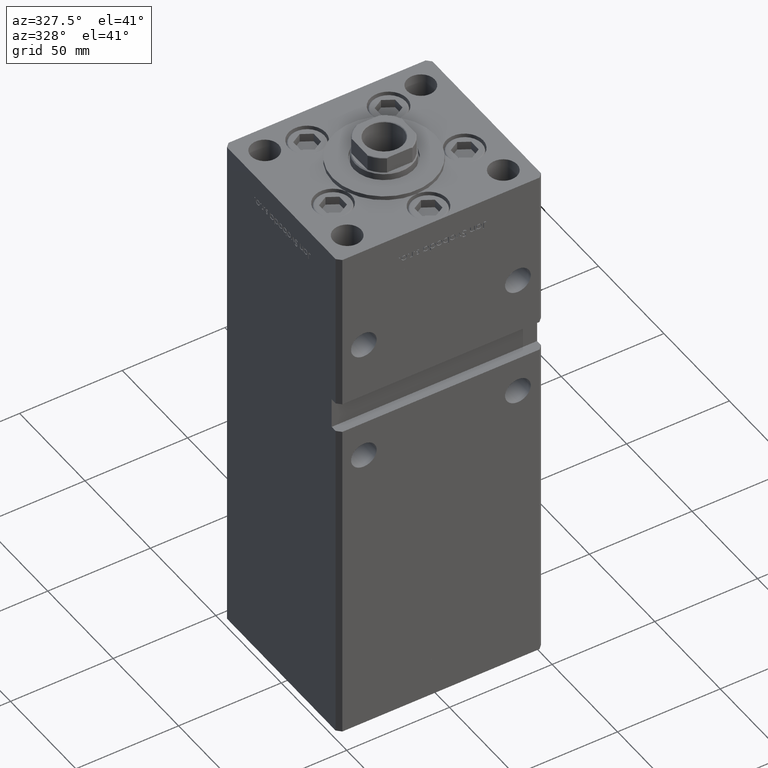
[diagram: clean part render]
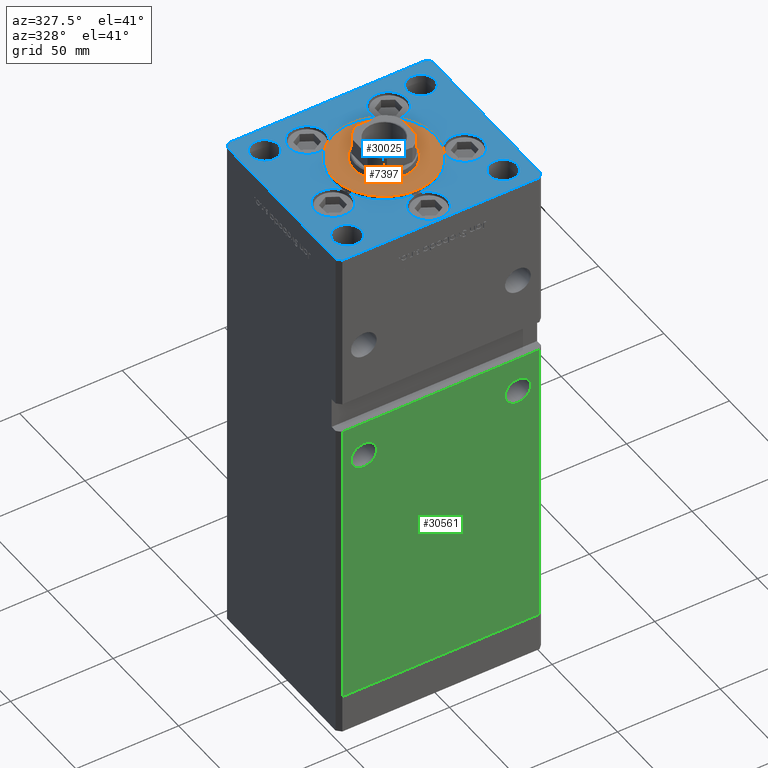
[diagram: same view with three faces highlighted in distinct colors, each labeled with its STEP entity id]
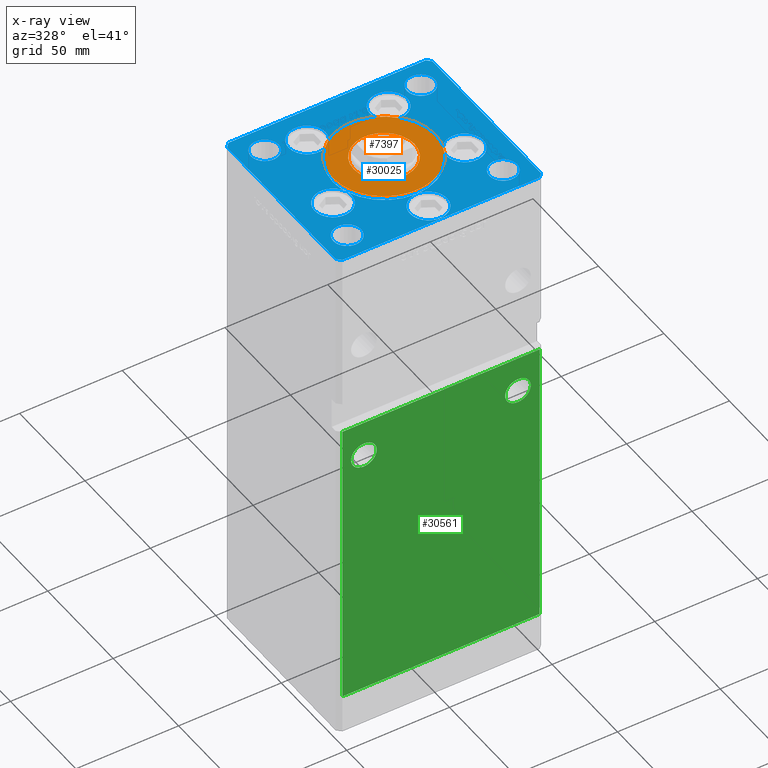
[diagram: x-ray of the same camera — body ghosted, the three highlighted faces saturated]
A machine part, auxiliary view with three faces highlighted in distinct colors.
The next image is the same camera in x-ray (body ghosted, the three faces saturated) — at least one of them is partly hidden behind the body in this view.
Their STEP definitions:

[orange] entity #7397 — the highlighted planar face has unit normal (0, 0, 1).
#1844 = CARTESIAN_POINT ( 'NONE',  ( 0.000000000000000000, -6.938893903907228378E-15, 2.000000000000000000 ) ) ;
#4925 = DIRECTION ( 'NONE',  ( 1.000000000000000000, 0.000000000000000000, -0.000000000000000000 ) ) ;
#5045 = DIRECTION ( 'NONE',  ( 1.000000000000000000, 0.000000000000000000, 0.000000000000000000 ) ) ;
#5736 = AXIS2_PLACEMENT_3D ( 'NONE', #30347, #26049, #5045 ) ;
#7397 = ADVANCED_FACE ( 'NONE', ( #16527, #41562 ), #33222, .T. ) ;
#7594 = CIRCLE ( 'NONE', #51451, 25.00000000000000000 ) ;
#13839 = AXIS2_PLACEMENT_3D ( 'NONE', #20273, #28071, #44247 ) ;
#14024 = ORIENTED_EDGE ( 'NONE', *, *, #35188, .F. ) ;
#15466 = CARTESIAN_POINT ( 'NONE',  ( 0.000000000000000000, -6.938893903907228378E-15, 2.000000000000000000 ) ) ;
#16270 = DIRECTION ( 'NONE',  ( 0.000000000000000000, 0.000000000000000000, 1.000000000000000000 ) ) ;
#16527 = FACE_BOUND ( 'NONE', #21030, .T. ) ;
#17327 = VERTEX_POINT ( 'NONE', #21140 ) ;
#17739 = DIRECTION ( 'NONE',  ( 1.000000000000000000, 0.000000000000000000, 0.000000000000000000 ) ) ;
#19020 = EDGE_CURVE ( 'NONE', #51255, #17327, #41886, .T. ) ;
#19529 = DIRECTION ( 'NONE',  ( 1.000000000000000000, 0.000000000000000000, 0.000000000000000000 ) ) ;
#19725 = CARTESIAN_POINT ( 'NONE',  ( -25.00000000000000000, -6.938893903907228378E-15, 2.000000000000000000 ) ) ;
#20273 = CARTESIAN_POINT ( 'NONE',  ( 0.000000000000000000, -6.938893903907228378E-15, 2.000000000000000000 ) ) ;
#21030 = EDGE_LOOP ( 'NONE', ( #14024, #27603 ) ) ;
#21140 = CARTESIAN_POINT ( 'NONE',  ( 25.00000000000000000, -3.877276906038844941E-15, 2.000000000000000000 ) ) ;
#21306 = CIRCLE ( 'NONE', #51411, 14.75000000000000178 ) ;
#22800 = EDGE_CURVE ( 'NONE', #17327, #51255, #7594, .T. ) ;
#23318 = CIRCLE ( 'NONE', #13839, 14.75000000000000178 ) ;
#25384 = VERTEX_POINT ( 'NONE', #26987 ) ;
#25934 = EDGE_CURVE ( 'NONE', #50110, #25384, #21306, .T. ) ;
#26049 = DIRECTION ( 'NONE',  ( 0.000000000000000000, 0.000000000000000000, 1.000000000000000000 ) ) ;
#26987 = CARTESIAN_POINT ( 'NONE',  ( 14.75000000000000178, -6.938893903907228378E-15, 2.000000000000000000 ) ) ;
#27603 = ORIENTED_EDGE ( 'NONE', *, *, #25934, .F. ) ;
#28071 = DIRECTION ( 'NONE',  ( 0.000000000000000000, 0.000000000000000000, 1.000000000000000000 ) ) ;
#28122 = ORIENTED_EDGE ( 'NONE', *, *, #22800, .T. ) ;
#30347 = CARTESIAN_POINT ( 'NONE',  ( 0.000000000000000000, -6.938893903907228378E-15, 2.000000000000000000 ) ) ;
#30929 = DIRECTION ( 'NONE',  ( 0.000000000000000000, 0.000000000000000000, 1.000000000000000000 ) ) ;
#31008 = EDGE_LOOP ( 'NONE', ( #39825, #28122 ) ) ;
#32957 = CARTESIAN_POINT ( 'NONE',  ( 0.000000000000000000, -6.938893903907228378E-15, 2.000000000000000000 ) ) ;
#33222 = PLANE ( 'NONE',  #51024 ) ;
#34542 = CARTESIAN_POINT ( 'NONE',  ( -14.75000000000000178, -5.132539875164881787E-15, 2.000000000000000000 ) ) ;
#35188 = EDGE_CURVE ( 'NONE', #25384, #50110, #23318, .T. ) ;
#39825 = ORIENTED_EDGE ( 'NONE', *, *, #19020, .T. ) ;
#41562 = FACE_OUTER_BOUND ( 'NONE', #31008, .T. ) ;
#41886 = CIRCLE ( 'NONE', #5736, 25.00000000000000000 ) ;
#44247 = DIRECTION ( 'NONE',  ( 1.000000000000000000, 0.000000000000000000, 0.000000000000000000 ) ) ;
#45609 = DIRECTION ( 'NONE',  ( 0.000000000000000000, 0.000000000000000000, 1.000000000000000000 ) ) ;
#50110 = VERTEX_POINT ( 'NONE', #34542 ) ;
#51024 = AXIS2_PLACEMENT_3D ( 'NONE', #32957, #45609, #4925 ) ;
#51255 = VERTEX_POINT ( 'NONE', #19725 ) ;
#51411 = AXIS2_PLACEMENT_3D ( 'NONE', #15466, #16270, #19529 ) ;
#51451 = AXIS2_PLACEMENT_3D ( 'NONE', #1844, #30929, #17739 ) ;

[blue] entity #30025 — the highlighted planar face has unit normal (0, 0, 1).
#385 = PLANE ( 'NONE',  #22303 ) ;
#386 = VECTOR ( 'NONE', #41576, 1000.000000000000000 ) ;
#445 = CARTESIAN_POINT ( 'NONE',  ( 38.00000000000000000, 31.50000000000000000, 0.000000000000000000 ) ) ;
#525 = DIRECTION ( 'NONE',  ( 1.000000000000000000, 0.000000000000000000, 0.000000000000000000 ) ) ;
#723 = DIRECTION ( 'NONE',  ( 1.000000000000000000, 0.000000000000000000, 0.000000000000000000 ) ) ;
#741 = AXIS2_PLACEMENT_3D ( 'NONE', #12400, #41217, #52815 ) ;
#745 = CARTESIAN_POINT ( 'NONE',  ( -48.00000000000000711, -43.50000000000002842, 0.000000000000000000 ) ) ;
#982 = CARTESIAN_POINT ( 'NONE',  ( -19.82068048781374969, 27.62499999999998934, 0.000000000000000000 ) ) ;
#1048 = DIRECTION ( 'NONE',  ( -1.000000000000000000, 0.000000000000000000, 0.000000000000000000 ) ) ;
#1085 = AXIS2_PLACEMENT_3D ( 'NONE', #31517, #10787, #35563 ) ;
#1244 = ORIENTED_EDGE ( 'NONE', *, *, #26894, .F. ) ;
#1307 = CARTESIAN_POINT ( 'NONE',  ( 19.82068048781374969, 27.62499999999998934, 0.000000000000000000 ) ) ;
#1521 = EDGE_CURVE ( 'NONE', #23140, #32369, #33551, .T. ) ;
#1721 = CARTESIAN_POINT ( 'NONE',  ( -10.82068048781375147, 27.62499999999998934, 0.000000000000000000 ) ) ;
#1748 = DIRECTION ( 'NONE',  ( 1.000000000000000000, 0.000000000000000000, 0.000000000000000000 ) ) ;
#1889 = CIRCLE ( 'NONE', #37148, 25.00000000000000000 ) ;
#1972 = CARTESIAN_POINT ( 'NONE',  ( -28.82068048781374969, 27.62499999999998934, 0.000000000000000000 ) ) ;
#2140 = CIRCLE ( 'NONE', #13319, 8.999999999999998224 ) ;
#2192 = VERTEX_POINT ( 'NONE', #34498 ) ;
#2255 = ORIENTED_EDGE ( 'NONE', *, *, #29759, .F. ) ;
#2289 = EDGE_CURVE ( 'NONE', #41773, #27877, #42365, .T. ) ;
#2462 = EDGE_LOOP ( 'NONE', ( #24437, #38668 ) ) ;
#2603 = EDGE_CURVE ( 'NONE', #31336, #34993, #42410, .T. ) ;
#2734 = CARTESIAN_POINT ( 'NONE',  ( 44.75000000000000711, -31.50000000000000711, 0.000000000000000000 ) ) ;
#2821 = CARTESIAN_POINT ( 'NONE',  ( -38.00000000000000711, -31.50000000000000711, 0.000000000000000000 ) ) ;
#2928 = VECTOR ( 'NONE', #20074, 1000.000000000000000 ) ;
#2936 = CARTESIAN_POINT ( 'NONE',  ( -48.00000000000000000, 43.49999999999997158, 0.000000000000000000 ) ) ;
#3039 = EDGE_CURVE ( 'NONE', #42451, #14654, #17484, .T. ) ;
#3259 = ORIENTED_EDGE ( 'NONE', *, *, #15744, .F. ) ;
#3457 = EDGE_CURVE ( 'NONE', #28441, #10040, #15763, .T. ) ;
#3681 = DIRECTION ( 'NONE',  ( 1.000000000000000000, 0.000000000000000000, 0.000000000000000000 ) ) ;
#3998 = EDGE_CURVE ( 'NONE', #45568, #44961, #14957, .T. ) ;
#4107 = ORIENTED_EDGE ( 'NONE', *, *, #29474, .F. ) ;
#4166 = LINE ( 'NONE', #12249, #2928 ) ;
#4270 = DIRECTION ( 'NONE',  ( 0.000000000000000000, 0.000000000000000000, 1.000000000000000000 ) ) ;
#4411 = ORIENTED_EDGE ( 'NONE', *, *, #14753, .F. ) ;
#4638 = CARTESIAN_POINT ( 'NONE',  ( 10.82068048781375147, 27.62499999999998934, 0.000000000000000000 ) ) ;
#4778 = DIRECTION ( 'NONE',  ( 0.000000000000000000, 0.000000000000000000, 1.000000000000000000 ) ) ;
#5352 = ORIENTED_EDGE ( 'NONE', *, *, #35789, .T. ) ;
#5401 = ORIENTED_EDGE ( 'NONE', *, *, #14153, .F. ) ;
#5428 = EDGE_CURVE ( 'NONE', #7619, #21578, #34760, .T. ) ;
#5446 = AXIS2_PLACEMENT_3D ( 'NONE', #37748, #30176, #15024 ) ;
#5488 = AXIS2_PLACEMENT_3D ( 'NONE', #41068, #33514, #21131 ) ;
#5753 = EDGE_LOOP ( 'NONE', ( #48846, #11104 ) ) ;
#5887 = DIRECTION ( 'NONE',  ( 1.000000000000000000, 0.000000000000000000, 0.000000000000000000 ) ) ;
#6051 = EDGE_CURVE ( 'NONE', #14714, #24112, #45942, .T. ) ;
#6067 = EDGE_CURVE ( 'NONE', #30899, #12243, #4166, .T. ) ;
#6636 = DIRECTION ( 'NONE',  ( 1.000000000000000000, 0.000000000000000000, 0.000000000000000000 ) ) ;
#7018 = ORIENTED_EDGE ( 'NONE', *, *, #10260, .F. ) ;
#7089 = DIRECTION ( 'NONE',  ( -1.000000000000000000, 0.000000000000000000, 0.000000000000000000 ) ) ;
#7334 = EDGE_CURVE ( 'NONE', #22779, #7619, #51867, .T. ) ;
#7346 = CARTESIAN_POINT ( 'NONE',  ( 0.000000000000000000, -34.00000000000000000, 0.000000000000000000 ) ) ;
#7619 = VERTEX_POINT ( 'NONE', #21034 ) ;
#7853 = VECTOR ( 'NONE', #29527, 1000.000000000000114 ) ;
#7900 = EDGE_CURVE ( 'NONE', #47216, #17555, #22691, .T. ) ;
#8018 = CARTESIAN_POINT ( 'NONE',  ( 50.00000000000000000, 41.50000000000000711, 0.000000000000000000 ) ) ;
#8117 = CARTESIAN_POINT ( 'NONE',  ( 32.05550741379015989, -11.33333333333332860, 0.000000000000000000 ) ) ;
#8203 = CIRCLE ( 'NONE', #13385, 9.000000000000001776 ) ;
#8450 = CARTESIAN_POINT ( 'NONE',  ( 0.000000000000000000, -34.00000000000000000, 0.000000000000000000 ) ) ;
#8460 = FACE_BOUND ( 'NONE', #13766, .T. ) ;
#8664 = EDGE_CURVE ( 'NONE', #32144, #52545, #28677, .T. ) ;
#8718 = LINE ( 'NONE', #36489, #386 ) ;
#8852 = EDGE_CURVE ( 'NONE', #34993, #42451, #15941, .T. ) ;
#9243 = CARTESIAN_POINT ( 'NONE',  ( 0.000000000000000000, 0.000000000000000000, 0.000000000000000000 ) ) ;
#9346 = CARTESIAN_POINT ( 'NONE',  ( 0.000000000000000000, -6.938893903907228378E-15, 0.000000000000000000 ) ) ;
#9697 = ORIENTED_EDGE ( 'NONE', *, *, #22600, .F. ) ;
#10040 = VERTEX_POINT ( 'NONE', #36731 ) ;
#10260 = EDGE_CURVE ( 'NONE', #21578, #22779, #28370, .T. ) ;
#10282 = DIRECTION ( 'NONE',  ( 0.000000000000000000, 0.000000000000000000, 1.000000000000000000 ) ) ;
#10424 = CARTESIAN_POINT ( 'NONE',  ( 50.00000000000000000, 41.50000000000000711, 0.000000000000000000 ) ) ;
#10460 = CARTESIAN_POINT ( 'NONE',  ( 38.00000000000000711, -31.50000000000000711, 0.000000000000000000 ) ) ;
#10714 = VECTOR ( 'NONE', #46348, 1000.000000000000000 ) ;
#10787 = DIRECTION ( 'NONE',  ( 0.000000000000000000, 0.000000000000000000, 1.000000000000000000 ) ) ;
#10972 = CIRCLE ( 'NONE', #52262, 6.749999999999999112 ) ;
#11104 = ORIENTED_EDGE ( 'NONE', *, *, #22742, .T. ) ;
#12087 = CIRCLE ( 'NONE', #15492, 9.000000000000000000 ) ;
#12243 = VERTEX_POINT ( 'NONE', #745 ) ;
#12249 = CARTESIAN_POINT ( 'NONE',  ( -50.00000000000000000, -41.50000000000004263, 0.000000000000000000 ) ) ;
#12400 = CARTESIAN_POINT ( 'NONE',  ( 32.05550741379015989, -11.33333333333332860, 0.000000000000000000 ) ) ;
#12455 = ORIENTED_EDGE ( 'NONE', *, *, #27581, .F. ) ;
#12776 = AXIS2_PLACEMENT_3D ( 'NONE', #9346, #4778, #17429 ) ;
#12858 = DIRECTION ( 'NONE',  ( 0.000000000000000000, 0.000000000000000000, 1.000000000000000000 ) ) ;
#12893 = CARTESIAN_POINT ( 'NONE',  ( 47.99999999999999289, 43.50000000000000000, 0.000000000000000000 ) ) ;
#13075 = CIRCLE ( 'NONE', #21689, 6.749999999999999112 ) ;
#13279 = FACE_BOUND ( 'NONE', #2462, .T. ) ;
#13319 = AXIS2_PLACEMENT_3D ( 'NONE', #1307, #25558, #25813 ) ;
#13385 = AXIS2_PLACEMENT_3D ( 'NONE', #53214, #20621, #36515 ) ;
#13553 = FACE_BOUND ( 'NONE', #14836, .T. ) ;
#13639 = ORIENTED_EDGE ( 'NONE', *, *, #2603, .F. ) ;
#13766 = EDGE_LOOP ( 'NONE', ( #43872, #2255 ) ) ;
#13792 = CARTESIAN_POINT ( 'NONE',  ( 0.000000000000000000, -6.938893903907228378E-15, 0.000000000000000000 ) ) ;
#14020 = AXIS2_PLACEMENT_3D ( 'NONE', #8450, #25922, #29182 ) ;
#14028 = AXIS2_PLACEMENT_3D ( 'NONE', #28668, #36768, #53196 ) ;
#14153 = EDGE_CURVE ( 'NONE', #24112, #7619, #50300, .T. ) ;
#14475 = AXIS2_PLACEMENT_3D ( 'NONE', #10460, #39006, #1048 ) ;
#14637 = DIRECTION ( 'NONE',  ( 0.000000000000000000, 0.000000000000000000, 1.000000000000000000 ) ) ;
#14654 = VERTEX_POINT ( 'NONE', #40553 ) ;
#14714 = VERTEX_POINT ( 'NONE', #19826 ) ;
#14753 = EDGE_CURVE ( 'NONE', #24011, #28441, #8203, .T. ) ;
#14836 = EDGE_LOOP ( 'NONE', ( #1244, #43128, #40284, #3259, #9697, #43309, #47584, #4411, #12455, #15239, #41414, #7018, #46149, #5401, #51476, #51465, #4107, #36499, #33503, #23046, #13639, #20408 ) ) ;
#14957 = CIRCLE ( 'NONE', #35572, 6.749999999999999112 ) ;
#15024 = DIRECTION ( 'NONE',  ( -1.000000000000000000, 0.000000000000000000, 0.000000000000000000 ) ) ;
#15239 = ORIENTED_EDGE ( 'NONE', *, *, #37730, .F. ) ;
#15492 = AXIS2_PLACEMENT_3D ( 'NONE', #35550, #16074, #3681 ) ;
#15548 = VERTEX_POINT ( 'NONE', #27177 ) ;
#15678 = EDGE_CURVE ( 'NONE', #51279, #21735, #19646, .T. ) ;
#15744 = EDGE_CURVE ( 'NONE', #38164, #47216, #38338, .T. ) ;
#15763 = CIRCLE ( 'NONE', #22652, 9.000000000000001776 ) ;
#15941 = CIRCLE ( 'NONE', #21971, 9.000000000000000000 ) ;
#16074 = DIRECTION ( 'NONE',  ( 0.000000000000000000, 0.000000000000000000, 1.000000000000000000 ) ) ;
#16222 = DIRECTION ( 'NONE',  ( 0.000000000000000000, 0.000000000000000000, 1.000000000000000000 ) ) ;
#16605 = DIRECTION ( 'NONE',  ( -1.000000000000000000, 0.000000000000000000, 0.000000000000000000 ) ) ;
#16869 = DIRECTION ( 'NONE',  ( 0.000000000000000000, 0.000000000000000000, 1.000000000000000000 ) ) ;
#16911 = CARTESIAN_POINT ( 'NONE',  ( -31.25000000000000711, -31.50000000000000711, 0.000000000000000000 ) ) ;
#16938 = LINE ( 'NONE', #12893, #27385 ) ;
#17068 = FACE_OUTER_BOUND ( 'NONE', #42635, .T. ) ;
#17079 = AXIS2_PLACEMENT_3D ( 'NONE', #13792, #29687, #50961 ) ;
#17268 = CARTESIAN_POINT ( 'NONE',  ( -50.00000000000000711, 41.49999999999999289, 0.000000000000000000 ) ) ;
#17429 = DIRECTION ( 'NONE',  ( 1.000000000000000000, 0.000000000000000000, 0.000000000000000000 ) ) ;
#17484 = CIRCLE ( 'NONE', #14028, 25.00000000000000000 ) ;
#17487 = EDGE_LOOP ( 'NONE', ( #42730, #28730 ) ) ;
#17555 = VERTEX_POINT ( 'NONE', #4638 ) ;
#17888 = CIRCLE ( 'NONE', #24779, 25.00000000000000000 ) ;
#18182 = CARTESIAN_POINT ( 'NONE',  ( 50.00000000000000000, -41.49999999999992895, 0.000000000000000000 ) ) ;
#18186 = DIRECTION ( 'NONE',  ( 0.000000000000000000, 0.000000000000000000, 1.000000000000000000 ) ) ;
#18741 = CIRCLE ( 'NONE', #34229, 9.000000000000001776 ) ;
#18785 = CIRCLE ( 'NONE', #30806, 25.00000000000000000 ) ;
#19458 = CARTESIAN_POINT ( 'NONE',  ( -48.00000000000000000, 43.49999999999997158, 0.000000000000000000 ) ) ;
#19646 = LINE ( 'NONE', #2936, #34930 ) ;
#19826 = CARTESIAN_POINT ( 'NONE',  ( -23.05550741379015633, -11.33333333333332860, 0.000000000000000000 ) ) ;
#19869 = EDGE_CURVE ( 'NONE', #52545, #32144, #36751, .T. ) ;
#20009 = CARTESIAN_POINT ( 'NONE',  ( 47.99999999999999289, 43.50000000000000000, 0.000000000000000000 ) ) ;
#20074 = DIRECTION ( 'NONE',  ( 0.7071067811865487940, -0.7071067811865463515, 0.000000000000000000 ) ) ;
#20408 = ORIENTED_EDGE ( 'NONE', *, *, #33491, .F. ) ;
#20519 = CIRCLE ( 'NONE', #17079, 25.00000000000000000 ) ;
#20524 = DIRECTION ( 'NONE',  ( 0.000000000000000000, 0.000000000000000000, 1.000000000000000000 ) ) ;
#20621 = DIRECTION ( 'NONE',  ( 0.000000000000000000, 0.000000000000000000, 1.000000000000000000 ) ) ;
#20740 = ORIENTED_EDGE ( 'NONE', *, *, #27353, .T. ) ;
#20913 = DIRECTION ( 'NONE',  ( 1.000000000000000000, 0.000000000000000000, 0.000000000000000000 ) ) ;
#21034 = CARTESIAN_POINT ( 'NONE',  ( 0.000000000000000000, -25.00000000000000000, 0.000000000000000000 ) ) ;
#21131 = DIRECTION ( 'NONE',  ( 1.000000000000000000, 0.000000000000000000, 0.000000000000000000 ) ) ;
#21431 = CIRCLE ( 'NONE', #52382, 9.000000000000001776 ) ;
#21578 = VERTEX_POINT ( 'NONE', #48063 ) ;
#21689 = AXIS2_PLACEMENT_3D ( 'NONE', #48112, #51617, #6636 ) ;
#21730 = CARTESIAN_POINT ( 'NONE',  ( 0.000000000000000000, -6.938893903907228378E-15, 0.000000000000000000 ) ) ;
#21735 = VERTEX_POINT ( 'NONE', #37519 ) ;
#21863 = ORIENTED_EDGE ( 'NONE', *, *, #6067, .T. ) ;
#21971 = AXIS2_PLACEMENT_3D ( 'NONE', #982, #41924, #24720 ) ;
#22303 = AXIS2_PLACEMENT_3D ( 'NONE', #9243, #25680, #29971 ) ;
#22479 = EDGE_CURVE ( 'NONE', #27527, #14714, #18741, .T. ) ;
#22553 = LINE ( 'NONE', #10424, #50424 ) ;
#22600 = EDGE_CURVE ( 'NONE', #15548, #38164, #18785, .T. ) ;
#22652 = AXIS2_PLACEMENT_3D ( 'NONE', #8117, #20524, #29127 ) ;
#22691 = CIRCLE ( 'NONE', #24392, 8.999999999999998224 ) ;
#22742 = EDGE_CURVE ( 'NONE', #44961, #45568, #43739, .T. ) ;
#22750 = CARTESIAN_POINT ( 'NONE',  ( -23.57022603955158502, -8.333333333333332149, 0.000000000000000000 ) ) ;
#22779 = VERTEX_POINT ( 'NONE', #26621 ) ;
#23018 = ORIENTED_EDGE ( 'NONE', *, *, #1521, .T. ) ;
#23046 = ORIENTED_EDGE ( 'NONE', *, *, #8852, .F. ) ;
#23140 = VERTEX_POINT ( 'NONE', #27091 ) ;
#23984 = CIRCLE ( 'NONE', #12776, 25.00000000000000000 ) ;
#24011 = VERTEX_POINT ( 'NONE', #49168 ) ;
#24026 = CIRCLE ( 'NONE', #32620, 6.749999999999999112 ) ;
#24112 = VERTEX_POINT ( 'NONE', #22750 ) ;
#24392 = AXIS2_PLACEMENT_3D ( 'NONE', #41181, #4270, #32567 ) ;
#24437 = ORIENTED_EDGE ( 'NONE', *, *, #8664, .T. ) ;
#24470 = AXIS2_PLACEMENT_3D ( 'NONE', #7346, #16222, #49612 ) ;
#24674 = DIRECTION ( 'NONE',  ( -0.7071067811865536790, -0.7071067811865414665, 0.000000000000000000 ) ) ;
#24720 = DIRECTION ( 'NONE',  ( 1.000000000000000000, 0.000000000000000000, 0.000000000000000000 ) ) ;
#24779 = AXIS2_PLACEMENT_3D ( 'NONE', #31576, #43970, #47209 ) ;
#24895 = CARTESIAN_POINT ( 'NONE',  ( 44.75000000000000000, 31.50000000000000000, 0.000000000000000000 ) ) ;
#24897 = FACE_BOUND ( 'NONE', #17487, .T. ) ;
#25558 = DIRECTION ( 'NONE',  ( 0.000000000000000000, 0.000000000000000000, 1.000000000000000000 ) ) ;
#25680 = DIRECTION ( 'NONE',  ( -0.000000000000000000, 0.000000000000000000, 1.000000000000000000 ) ) ;
#25682 = CARTESIAN_POINT ( 'NONE',  ( 28.82068048781374969, 27.62499999999998934, 0.000000000000000000 ) ) ;
#25805 = EDGE_CURVE ( 'NONE', #27877, #41773, #10972, .T. ) ;
#25813 = DIRECTION ( 'NONE',  ( 1.000000000000000000, 0.000000000000000000, 0.000000000000000000 ) ) ;
#25922 = DIRECTION ( 'NONE',  ( 0.000000000000000000, 0.000000000000000000, 1.000000000000000000 ) ) ;
#26132 = VERTEX_POINT ( 'NONE', #24895 ) ;
#26621 = CARTESIAN_POINT ( 'NONE',  ( 9.000000000000000000, -34.00000000000000000, 0.000000000000000000 ) ) ;
#26760 = DIRECTION ( 'NONE',  ( -0.000000000000000000, -0.000000000000000000, -1.000000000000000000 ) ) ;
#26849 = DIRECTION ( 'NONE',  ( -0.7071067811865512365, 0.7071067811865439090, 0.000000000000000000 ) ) ;
#26894 = EDGE_CURVE ( 'NONE', #38164, #42451, #17888, .T. ) ;
#27091 = CARTESIAN_POINT ( 'NONE',  ( 50.00000000000000000, -41.49999999999992895, 0.000000000000000000 ) ) ;
#27177 = CARTESIAN_POINT ( 'NONE',  ( 25.00000000000000000, -3.877276906038844941E-15, 0.000000000000000000 ) ) ;
#27353 = EDGE_CURVE ( 'NONE', #30742, #51279, #16938, .T. ) ;
#27385 = VECTOR ( 'NONE', #49537, 1000.000000000000000 ) ;
#27527 = VERTEX_POINT ( 'NONE', #49302 ) ;
#27581 = EDGE_CURVE ( 'NONE', #10040, #24011, #39464, .T. ) ;
#27590 = DIRECTION ( 'NONE',  ( 1.000000000000000000, 0.000000000000000000, 0.000000000000000000 ) ) ;
#27867 = EDGE_CURVE ( 'NONE', #10040, #15548, #23984, .T. ) ;
#27877 = VERTEX_POINT ( 'NONE', #16911 ) ;
#27938 = CARTESIAN_POINT ( 'NONE',  ( -19.82068048781374969, 27.62499999999998934, 0.000000000000000000 ) ) ;
#28049 = AXIS2_PLACEMENT_3D ( 'NONE', #38372, #41885, #1748 ) ;
#28082 = EDGE_CURVE ( 'NONE', #14654, #24112, #20519, .T. ) ;
#28370 = CIRCLE ( 'NONE', #30979, 9.000000000000000000 ) ;
#28441 = VERTEX_POINT ( 'NONE', #47127 ) ;
#28668 = CARTESIAN_POINT ( 'NONE',  ( 0.000000000000000000, -6.938893903907228378E-15, 0.000000000000000000 ) ) ;
#28677 = CIRCLE ( 'NONE', #5446, 6.749999999999999112 ) ;
#28730 = ORIENTED_EDGE ( 'NONE', *, *, #2289, .F. ) ;
#29086 = VERTEX_POINT ( 'NONE', #48070 ) ;
#29127 = DIRECTION ( 'NONE',  ( 1.000000000000000000, 0.000000000000000000, 0.000000000000000000 ) ) ;
#29182 = DIRECTION ( 'NONE',  ( 1.000000000000000000, 0.000000000000000000, 0.000000000000000000 ) ) ;
#29255 = DIRECTION ( 'NONE',  ( -0.000000000000000000, -0.000000000000000000, -1.000000000000000000 ) ) ;
#29281 = DIRECTION ( 'NONE',  ( 1.000000000000000000, 0.000000000000000000, 0.000000000000000000 ) ) ;
#29330 = CARTESIAN_POINT ( 'NONE',  ( 0.000000000000000000, -6.938893903907228378E-15, 0.000000000000000000 ) ) ;
#29384 = ORIENTED_EDGE ( 'NONE', *, *, #48328, .T. ) ;
#29474 = EDGE_CURVE ( 'NONE', #24112, #27527, #21431, .T. ) ;
#29527 = DIRECTION ( 'NONE',  ( 0.7071067811865474617, 0.7071067811865474617, 0.000000000000000000 ) ) ;
#29687 = DIRECTION ( 'NONE',  ( 0.000000000000000000, 0.000000000000000000, 1.000000000000000000 ) ) ;
#29759 = EDGE_CURVE ( 'NONE', #29086, #26132, #24026, .T. ) ;
#29971 = DIRECTION ( 'NONE',  ( 1.000000000000000000, 0.000000000000000000, 0.000000000000000000 ) ) ;
#30025 = ADVANCED_FACE ( 'NONE', ( #13553, #13279, #8460, #24897, #17068, #41312 ), #385, .T. ) ;
#30092 = DIRECTION ( 'NONE',  ( 0.000000000000000000, 0.000000000000000000, 1.000000000000000000 ) ) ;
#30176 = DIRECTION ( 'NONE',  ( -0.000000000000000000, -0.000000000000000000, -1.000000000000000000 ) ) ;
#30472 = CARTESIAN_POINT ( 'NONE',  ( -14.57402977045128978, 20.31249999999999289, 0.000000000000000000 ) ) ;
#30662 = DIRECTION ( 'NONE',  ( 0.000000000000000000, 0.000000000000000000, 1.000000000000000000 ) ) ;
#30742 = VERTEX_POINT ( 'NONE', #20009 ) ;
#30806 = AXIS2_PLACEMENT_3D ( 'NONE', #29330, #41200, #525 ) ;
#30899 = VERTEX_POINT ( 'NONE', #38266 ) ;
#30979 = AXIS2_PLACEMENT_3D ( 'NONE', #38822, #10282, #33989 ) ;
#31200 = CARTESIAN_POINT ( 'NONE',  ( -31.25000000000000000, 31.50000000000000000, 0.000000000000000000 ) ) ;
#31336 = VERTEX_POINT ( 'NONE', #1721 ) ;
#31341 = CARTESIAN_POINT ( 'NONE',  ( -38.00000000000000000, 31.50000000000000000, 0.000000000000000000 ) ) ;
#31517 = CARTESIAN_POINT ( 'NONE',  ( -38.00000000000000711, -31.50000000000000711, 0.000000000000000000 ) ) ;
#31576 = CARTESIAN_POINT ( 'NONE',  ( 0.000000000000000000, -6.938893903907228378E-15, 0.000000000000000000 ) ) ;
#32144 = VERTEX_POINT ( 'NONE', #31200 ) ;
#32369 = VERTEX_POINT ( 'NONE', #8018 ) ;
#32567 = DIRECTION ( 'NONE',  ( 1.000000000000000000, 0.000000000000000000, 0.000000000000000000 ) ) ;
#32620 = AXIS2_PLACEMENT_3D ( 'NONE', #445, #16869, #20913 ) ;
#32855 = CARTESIAN_POINT ( 'NONE',  ( -44.75000000000000711, -31.50000000000000711, 0.000000000000000000 ) ) ;
#33491 = EDGE_CURVE ( 'NONE', #42451, #31336, #12087, .T. ) ;
#33503 = ORIENTED_EDGE ( 'NONE', *, *, #3039, .F. ) ;
#33514 = DIRECTION ( 'NONE',  ( 0.000000000000000000, 0.000000000000000000, 1.000000000000000000 ) ) ;
#33551 = LINE ( 'NONE', #18182, #37511 ) ;
#33989 = DIRECTION ( 'NONE',  ( 1.000000000000000000, 0.000000000000000000, 0.000000000000000000 ) ) ;
#34229 = AXIS2_PLACEMENT_3D ( 'NONE', #39670, #14637, #40669 ) ;
#34498 = CARTESIAN_POINT ( 'NONE',  ( 48.00000000000000711, -43.49999999999992184, 0.000000000000000000 ) ) ;
#34760 = CIRCLE ( 'NONE', #24470, 9.000000000000000000 ) ;
#34930 = VECTOR ( 'NONE', #24674, 1000.000000000000000 ) ;
#34993 = VERTEX_POINT ( 'NONE', #1972 ) ;
#35550 = CARTESIAN_POINT ( 'NONE',  ( -19.82068048781374969, 27.62499999999998934, 0.000000000000000000 ) ) ;
#35563 = DIRECTION ( 'NONE',  ( 1.000000000000000000, 0.000000000000000000, 0.000000000000000000 ) ) ;
#35572 = AXIS2_PLACEMENT_3D ( 'NONE', #41126, #29255, #16605 ) ;
#35789 = EDGE_CURVE ( 'NONE', #2192, #23140, #41136, .T. ) ;
#36489 = CARTESIAN_POINT ( 'NONE',  ( -48.00000000000000711, -43.50000000000002842, 0.000000000000000000 ) ) ;
#36499 = ORIENTED_EDGE ( 'NONE', *, *, #28082, .F. ) ;
#36515 = DIRECTION ( 'NONE',  ( 1.000000000000000000, 0.000000000000000000, 0.000000000000000000 ) ) ;
#36731 = CARTESIAN_POINT ( 'NONE',  ( 23.57022603955158502, -8.333333333333332149, 0.000000000000000000 ) ) ;
#36751 = CIRCLE ( 'NONE', #47030, 6.749999999999999112 ) ;
#36768 = DIRECTION ( 'NONE',  ( 0.000000000000000000, 0.000000000000000000, 1.000000000000000000 ) ) ;
#37148 = AXIS2_PLACEMENT_3D ( 'NONE', #21730, #12858, #29281 ) ;
#37511 = VECTOR ( 'NONE', #45670, 1000.000000000000000 ) ;
#37519 = CARTESIAN_POINT ( 'NONE',  ( -50.00000000000000711, 41.49999999999999289, 0.000000000000000000 ) ) ;
#37730 = EDGE_CURVE ( 'NONE', #7619, #10040, #1889, .T. ) ;
#37748 = CARTESIAN_POINT ( 'NONE',  ( -38.00000000000000000, 31.50000000000000000, 0.000000000000000000 ) ) ;
#37785 = EDGE_CURVE ( 'NONE', #26132, #29086, #13075, .T. ) ;
#38164 = VERTEX_POINT ( 'NONE', #44810 ) ;
#38266 = CARTESIAN_POINT ( 'NONE',  ( -50.00000000000000000, -41.50000000000004263, 0.000000000000000000 ) ) ;
#38338 = CIRCLE ( 'NONE', #28049, 8.999999999999998224 ) ;
#38372 = CARTESIAN_POINT ( 'NONE',  ( 19.82068048781374969, 27.62499999999998934, 0.000000000000000000 ) ) ;
#38476 = CARTESIAN_POINT ( 'NONE',  ( 0.000000000000000000, -6.938893903907228378E-15, 0.000000000000000000 ) ) ;
#38668 = ORIENTED_EDGE ( 'NONE', *, *, #19869, .T. ) ;
#38716 = CARTESIAN_POINT ( 'NONE',  ( -32.05550741379015989, -11.33333333333332860, 0.000000000000000000 ) ) ;
#38822 = CARTESIAN_POINT ( 'NONE',  ( 0.000000000000000000, -34.00000000000000000, 0.000000000000000000 ) ) ;
#39006 = DIRECTION ( 'NONE',  ( -0.000000000000000000, -0.000000000000000000, -1.000000000000000000 ) ) ;
#39464 = CIRCLE ( 'NONE', #741, 9.000000000000001776 ) ;
#39633 = CARTESIAN_POINT ( 'NONE',  ( -44.75000000000000000, 31.50000000000000000, 0.000000000000000000 ) ) ;
#39670 = CARTESIAN_POINT ( 'NONE',  ( -32.05550741379015989, -11.33333333333332860, 0.000000000000000000 ) ) ;
#40284 = ORIENTED_EDGE ( 'NONE', *, *, #7900, .F. ) ;
#40553 = CARTESIAN_POINT ( 'NONE',  ( -25.00000000000000000, -6.938893903907228378E-15, 0.000000000000000000 ) ) ;
#40669 = DIRECTION ( 'NONE',  ( 1.000000000000000000, 0.000000000000000000, 0.000000000000000000 ) ) ;
#41068 = CARTESIAN_POINT ( 'NONE',  ( -32.05550741379015989, -11.33333333333332860, 0.000000000000000000 ) ) ;
#41126 = CARTESIAN_POINT ( 'NONE',  ( 38.00000000000000711, -31.50000000000000711, 0.000000000000000000 ) ) ;
#41136 = LINE ( 'NONE', #41653, #7853 ) ;
#41181 = CARTESIAN_POINT ( 'NONE',  ( 19.82068048781374969, 27.62499999999998934, 0.000000000000000000 ) ) ;
#41200 = DIRECTION ( 'NONE',  ( 0.000000000000000000, 0.000000000000000000, 1.000000000000000000 ) ) ;
#41217 = DIRECTION ( 'NONE',  ( 0.000000000000000000, 0.000000000000000000, 1.000000000000000000 ) ) ;
#41312 = FACE_BOUND ( 'NONE', #5753, .T. ) ;
#41414 = ORIENTED_EDGE ( 'NONE', *, *, #7334, .F. ) ;
#41576 = DIRECTION ( 'NONE',  ( 1.000000000000000000, 1.156482317317871331E-15, 0.000000000000000000 ) ) ;
#41653 = CARTESIAN_POINT ( 'NONE',  ( 48.00000000000000711, -43.49999999999992184, 0.000000000000000000 ) ) ;
#41773 = VERTEX_POINT ( 'NONE', #32855 ) ;
#41885 = DIRECTION ( 'NONE',  ( 0.000000000000000000, 0.000000000000000000, 1.000000000000000000 ) ) ;
#41924 = DIRECTION ( 'NONE',  ( 0.000000000000000000, 0.000000000000000000, 1.000000000000000000 ) ) ;
#42365 = CIRCLE ( 'NONE', #1085, 6.749999999999999112 ) ;
#42410 = CIRCLE ( 'NONE', #48467, 9.000000000000000000 ) ;
#42451 = VERTEX_POINT ( 'NONE', #30472 ) ;
#42635 = EDGE_LOOP ( 'NONE', ( #21863, #51200, #5352, #23018, #50981, #20740, #45555, #29384 ) ) ;
#42730 = ORIENTED_EDGE ( 'NONE', *, *, #25805, .F. ) ;
#42845 = LINE ( 'NONE', #17268, #10714 ) ;
#43128 = ORIENTED_EDGE ( 'NONE', *, *, #48505, .F. ) ;
#43309 = ORIENTED_EDGE ( 'NONE', *, *, #27867, .F. ) ;
#43429 = AXIS2_PLACEMENT_3D ( 'NONE', #38476, #30662, #5887 ) ;
#43739 = CIRCLE ( 'NONE', #14475, 6.749999999999999112 ) ;
#43872 = ORIENTED_EDGE ( 'NONE', *, *, #37785, .F. ) ;
#43970 = DIRECTION ( 'NONE',  ( 0.000000000000000000, 0.000000000000000000, 1.000000000000000000 ) ) ;
#44810 = CARTESIAN_POINT ( 'NONE',  ( 14.57402977045128623, 20.31249999999998579, 0.000000000000000000 ) ) ;
#44961 = VERTEX_POINT ( 'NONE', #48507 ) ;
#45555 = ORIENTED_EDGE ( 'NONE', *, *, #15678, .T. ) ;
#45568 = VERTEX_POINT ( 'NONE', #2734 ) ;
#45670 = DIRECTION ( 'NONE',  ( 0.000000000000000000, 1.000000000000000000, 0.000000000000000000 ) ) ;
#45942 = CIRCLE ( 'NONE', #5488, 9.000000000000001776 ) ;
#46149 = ORIENTED_EDGE ( 'NONE', *, *, #5428, .F. ) ;
#46348 = DIRECTION ( 'NONE',  ( 8.360113137237620037E-17, -1.000000000000000000, 0.000000000000000000 ) ) ;
#47030 = AXIS2_PLACEMENT_3D ( 'NONE', #31341, #26760, #7089 ) ;
#47127 = CARTESIAN_POINT ( 'NONE',  ( 41.05550741379015989, -11.33333333333332860, 0.000000000000000000 ) ) ;
#47175 = EDGE_CURVE ( 'NONE', #12243, #2192, #8718, .T. ) ;
#47209 = DIRECTION ( 'NONE',  ( 1.000000000000000000, 0.000000000000000000, 0.000000000000000000 ) ) ;
#47216 = VERTEX_POINT ( 'NONE', #25682 ) ;
#47584 = ORIENTED_EDGE ( 'NONE', *, *, #3457, .F. ) ;
#48063 = CARTESIAN_POINT ( 'NONE',  ( -9.000000000000000000, -34.00000000000000000, 0.000000000000000000 ) ) ;
#48070 = CARTESIAN_POINT ( 'NONE',  ( 31.25000000000000000, 31.50000000000000000, 0.000000000000000000 ) ) ;
#48112 = CARTESIAN_POINT ( 'NONE',  ( 38.00000000000000000, 31.50000000000000000, 0.000000000000000000 ) ) ;
#48328 = EDGE_CURVE ( 'NONE', #21735, #30899, #42845, .T. ) ;
#48467 = AXIS2_PLACEMENT_3D ( 'NONE', #27938, #49743, #723 ) ;
#48505 = EDGE_CURVE ( 'NONE', #17555, #38164, #2140, .T. ) ;
#48507 = CARTESIAN_POINT ( 'NONE',  ( 31.25000000000000711, -31.50000000000000711, 0.000000000000000000 ) ) ;
#48846 = ORIENTED_EDGE ( 'NONE', *, *, #3998, .T. ) ;
#49168 = CARTESIAN_POINT ( 'NONE',  ( 23.05550741379015633, -11.33333333333332682, 0.000000000000000000 ) ) ;
#49302 = CARTESIAN_POINT ( 'NONE',  ( -41.05550741379015989, -11.33333333333332682, 0.000000000000000000 ) ) ;
#49537 = DIRECTION ( 'NONE',  ( -1.000000000000000000, -2.891205793294678326E-16, 0.000000000000000000 ) ) ;
#49612 = DIRECTION ( 'NONE',  ( 1.000000000000000000, 0.000000000000000000, 0.000000000000000000 ) ) ;
#49743 = DIRECTION ( 'NONE',  ( 0.000000000000000000, 0.000000000000000000, 1.000000000000000000 ) ) ;
#50300 = CIRCLE ( 'NONE', #43429, 25.00000000000000000 ) ;
#50424 = VECTOR ( 'NONE', #26849, 999.9999999999998863 ) ;
#50579 = DIRECTION ( 'NONE',  ( 1.000000000000000000, 0.000000000000000000, 0.000000000000000000 ) ) ;
#50961 = DIRECTION ( 'NONE',  ( 1.000000000000000000, 0.000000000000000000, 0.000000000000000000 ) ) ;
#50981 = ORIENTED_EDGE ( 'NONE', *, *, #53187, .T. ) ;
#51200 = ORIENTED_EDGE ( 'NONE', *, *, #47175, .T. ) ;
#51279 = VERTEX_POINT ( 'NONE', #19458 ) ;
#51465 = ORIENTED_EDGE ( 'NONE', *, *, #22479, .F. ) ;
#51476 = ORIENTED_EDGE ( 'NONE', *, *, #6051, .F. ) ;
#51617 = DIRECTION ( 'NONE',  ( 0.000000000000000000, 0.000000000000000000, 1.000000000000000000 ) ) ;
#51867 = CIRCLE ( 'NONE', #14020, 9.000000000000000000 ) ;
#52262 = AXIS2_PLACEMENT_3D ( 'NONE', #2821, #18186, #27590 ) ;
#52382 = AXIS2_PLACEMENT_3D ( 'NONE', #38716, #30092, #50579 ) ;
#52545 = VERTEX_POINT ( 'NONE', #39633 ) ;
#52815 = DIRECTION ( 'NONE',  ( 1.000000000000000000, 0.000000000000000000, 0.000000000000000000 ) ) ;
#53187 = EDGE_CURVE ( 'NONE', #32369, #30742, #22553, .T. ) ;
#53196 = DIRECTION ( 'NONE',  ( 1.000000000000000000, 0.000000000000000000, 0.000000000000000000 ) ) ;
#53214 = CARTESIAN_POINT ( 'NONE',  ( 32.05550741379015989, -11.33333333333332860, 0.000000000000000000 ) ) ;

[green] entity #30561 — the highlighted planar face has unit normal (0, 1, 0).
#580 = DIRECTION ( 'NONE',  ( 0.000000000000000000, 0.000000000000000000, 1.000000000000000000 ) ) ;
#909 = DIRECTION ( 'NONE',  ( 0.000000000000000000, -0.000000000000000000, 1.000000000000000000 ) ) ;
#1573 = DIRECTION ( 'NONE',  ( -0.000000000000000000, -0.000000000000000000, -1.000000000000000000 ) ) ;
#4477 = CARTESIAN_POINT ( 'NONE',  ( -37.50000000000000000, -43.50000000000000000, 120.2500000000000000 ) ) ;
#4623 = CARTESIAN_POINT ( 'NONE',  ( 37.50000000000000000, -43.50000000000000000, 132.7500000000000000 ) ) ;
#5205 = PLANE ( 'NONE',  #27459 ) ;
#5328 = LINE ( 'NONE', #43042, #31882 ) ;
#5848 = AXIS2_PLACEMENT_3D ( 'NONE', #45812, #29385, #580 ) ;
#7291 = ORIENTED_EDGE ( 'NONE', *, *, #52897, .T. ) ;
#7945 = VERTEX_POINT ( 'NONE', #13407 ) ;
#8617 = VERTEX_POINT ( 'NONE', #4623 ) ;
#8829 = CARTESIAN_POINT ( 'NONE',  ( -47.99999999999998579, -43.50000000000000000, 0.000000000000000000 ) ) ;
#9511 = FACE_OUTER_BOUND ( 'NONE', #33814, .T. ) ;
#11321 = CARTESIAN_POINT ( 'NONE',  ( 37.50000000000000000, -43.50000000000000000, 126.5000000000000000 ) ) ;
#11535 = EDGE_CURVE ( 'NONE', #14970, #7945, #19229, .T. ) ;
#12002 = EDGE_LOOP ( 'NONE', ( #47487, #51069 ) ) ;
#13407 = CARTESIAN_POINT ( 'NONE',  ( 47.99999999999998579, -43.50000000000000000, 0.000000000000000000 ) ) ;
#14114 = CARTESIAN_POINT ( 'NONE',  ( 47.99999999999998579, -43.50000000000000000, 218.5000000000000000 ) ) ;
#14831 = DIRECTION ( 'NONE',  ( 0.000000000000000000, 1.000000000000000000, 0.000000000000000000 ) ) ;
#14970 = VERTEX_POINT ( 'NONE', #23284 ) ;
#15876 = EDGE_LOOP ( 'NONE', ( #25937, #26203 ) ) ;
#16126 = LINE ( 'NONE', #8829, #46955 ) ;
#16448 = CARTESIAN_POINT ( 'NONE',  ( -47.99999999999998579, -43.50000000000000000, 144.0000000000000284 ) ) ;
#17912 = DIRECTION ( 'NONE',  ( 0.000000000000000000, 1.000000000000000000, 0.000000000000000000 ) ) ;
#19229 = LINE ( 'NONE', #14114, #21007 ) ;
#21007 = VECTOR ( 'NONE', #23277, 1000.000000000000000 ) ;
#21906 = FACE_BOUND ( 'NONE', #15876, .T. ) ;
#23277 = DIRECTION ( 'NONE',  ( -0.000000000000000000, -0.000000000000000000, -1.000000000000000000 ) ) ;
#23284 = CARTESIAN_POINT ( 'NONE',  ( 47.99999999999998579, -43.50000000000000000, 144.0000000000000284 ) ) ;
#25937 = ORIENTED_EDGE ( 'NONE', *, *, #43351, .T. ) ;
#26203 = ORIENTED_EDGE ( 'NONE', *, *, #44122, .T. ) ;
#26687 = DIRECTION ( 'NONE',  ( 0.000000000000000000, 0.000000000000000000, 1.000000000000000000 ) ) ;
#26823 = CARTESIAN_POINT ( 'NONE',  ( -47.99999999999998579, -43.50000000000000000, 0.000000000000000000 ) ) ;
#26945 = ORIENTED_EDGE ( 'NONE', *, *, #37678, .F. ) ;
#27084 = EDGE_CURVE ( 'NONE', #32132, #33610, #29075, .T. ) ;
#27459 = AXIS2_PLACEMENT_3D ( 'NONE', #41851, #49411, #909 ) ;
#28483 = CIRCLE ( 'NONE', #31913, 6.250000000000005329 ) ;
#29075 = CIRCLE ( 'NONE', #5848, 6.250000000000005329 ) ;
#29385 = DIRECTION ( 'NONE',  ( 0.000000000000000000, 1.000000000000000000, 0.000000000000000000 ) ) ;
#30390 = CARTESIAN_POINT ( 'NONE',  ( -37.50000000000000000, -43.50000000000000000, 132.7500000000000000 ) ) ;
#30561 = ADVANCED_FACE ( 'NONE', ( #32977, #21906, #9511 ), #5205, .F. ) ;
#31173 = CIRCLE ( 'NONE', #38052, 6.250000000000005329 ) ;
#31190 = DIRECTION ( 'NONE',  ( 0.000000000000000000, 0.000000000000000000, 1.000000000000000000 ) ) ;
#31882 = VECTOR ( 'NONE', #1573, 1000.000000000000000 ) ;
#31913 = AXIS2_PLACEMENT_3D ( 'NONE', #43313, #47894, #31190 ) ;
#32132 = VERTEX_POINT ( 'NONE', #30390 ) ;
#32358 = CARTESIAN_POINT ( 'NONE',  ( 37.50000000000000000, -43.50000000000000000, 120.2500000000000000 ) ) ;
#32977 = FACE_BOUND ( 'NONE', #12002, .T. ) ;
#33336 = CARTESIAN_POINT ( 'NONE',  ( -49.99999999999998579, -43.50000000000000000, 144.0000000000000284 ) ) ;
#33610 = VERTEX_POINT ( 'NONE', #4477 ) ;
#33814 = EDGE_LOOP ( 'NONE', ( #34857, #26945, #39982, #7291 ) ) ;
#34582 = EDGE_CURVE ( 'NONE', #52577, #36896, #5328, .T. ) ;
#34857 = ORIENTED_EDGE ( 'NONE', *, *, #11535, .F. ) ;
#35565 = EDGE_CURVE ( 'NONE', #33610, #32132, #28483, .T. ) ;
#36337 = DIRECTION ( 'NONE',  ( 1.000000000000000000, 0.000000000000000000, 0.000000000000000000 ) ) ;
#36345 = CIRCLE ( 'NONE', #49259, 6.250000000000005329 ) ;
#36896 = VERTEX_POINT ( 'NONE', #26823 ) ;
#37678 = EDGE_CURVE ( 'NONE', #52577, #14970, #42198, .T. ) ;
#38052 = AXIS2_PLACEMENT_3D ( 'NONE', #11321, #14831, #26687 ) ;
#39982 = ORIENTED_EDGE ( 'NONE', *, *, #34582, .T. ) ;
#41851 = CARTESIAN_POINT ( 'NONE',  ( -47.99999999999998579, -43.50000000000000000, 218.5000000000000000 ) ) ;
#42154 = DIRECTION ( 'NONE',  ( 0.000000000000000000, 0.000000000000000000, 1.000000000000000000 ) ) ;
#42198 = LINE ( 'NONE', #33336, #46591 ) ;
#43042 = CARTESIAN_POINT ( 'NONE',  ( -47.99999999999998579, -43.50000000000000000, 218.5000000000000000 ) ) ;
#43313 = CARTESIAN_POINT ( 'NONE',  ( -37.50000000000000000, -43.50000000000000000, 126.5000000000000000 ) ) ;
#43351 = EDGE_CURVE ( 'NONE', #8617, #43507, #36345, .T. ) ;
#43507 = VERTEX_POINT ( 'NONE', #32358 ) ;
#44122 = EDGE_CURVE ( 'NONE', #43507, #8617, #31173, .T. ) ;
#45812 = CARTESIAN_POINT ( 'NONE',  ( -37.50000000000000000, -43.50000000000000000, 126.5000000000000000 ) ) ;
#46591 = VECTOR ( 'NONE', #49760, 1000.000000000000000 ) ;
#46722 = CARTESIAN_POINT ( 'NONE',  ( 37.50000000000000000, -43.50000000000000000, 126.5000000000000000 ) ) ;
#46955 = VECTOR ( 'NONE', #36337, 1000.000000000000000 ) ;
#47487 = ORIENTED_EDGE ( 'NONE', *, *, #27084, .T. ) ;
#47894 = DIRECTION ( 'NONE',  ( 0.000000000000000000, 1.000000000000000000, 0.000000000000000000 ) ) ;
#49259 = AXIS2_PLACEMENT_3D ( 'NONE', #46722, #17912, #42154 ) ;
#49411 = DIRECTION ( 'NONE',  ( 0.000000000000000000, 1.000000000000000000, 0.000000000000000000 ) ) ;
#49760 = DIRECTION ( 'NONE',  ( 1.000000000000000000, 0.000000000000000000, 0.000000000000000000 ) ) ;
#51069 = ORIENTED_EDGE ( 'NONE', *, *, #35565, .T. ) ;
#52577 = VERTEX_POINT ( 'NONE', #16448 ) ;
#52897 = EDGE_CURVE ( 'NONE', #36896, #7945, #16126, .T. ) ;